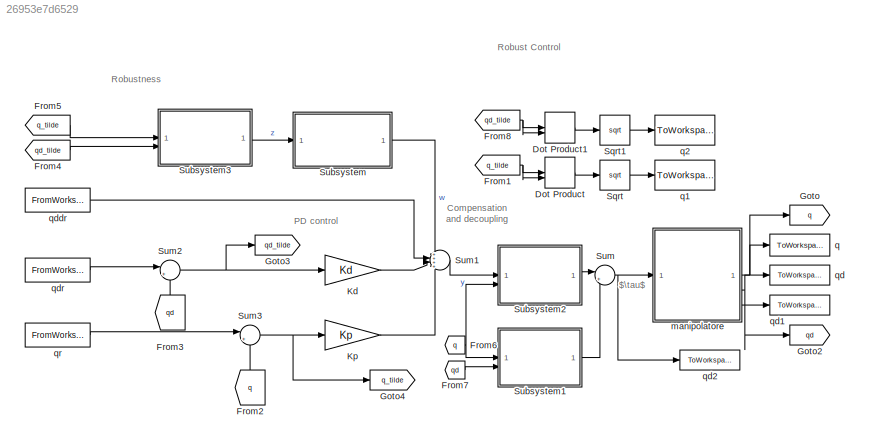
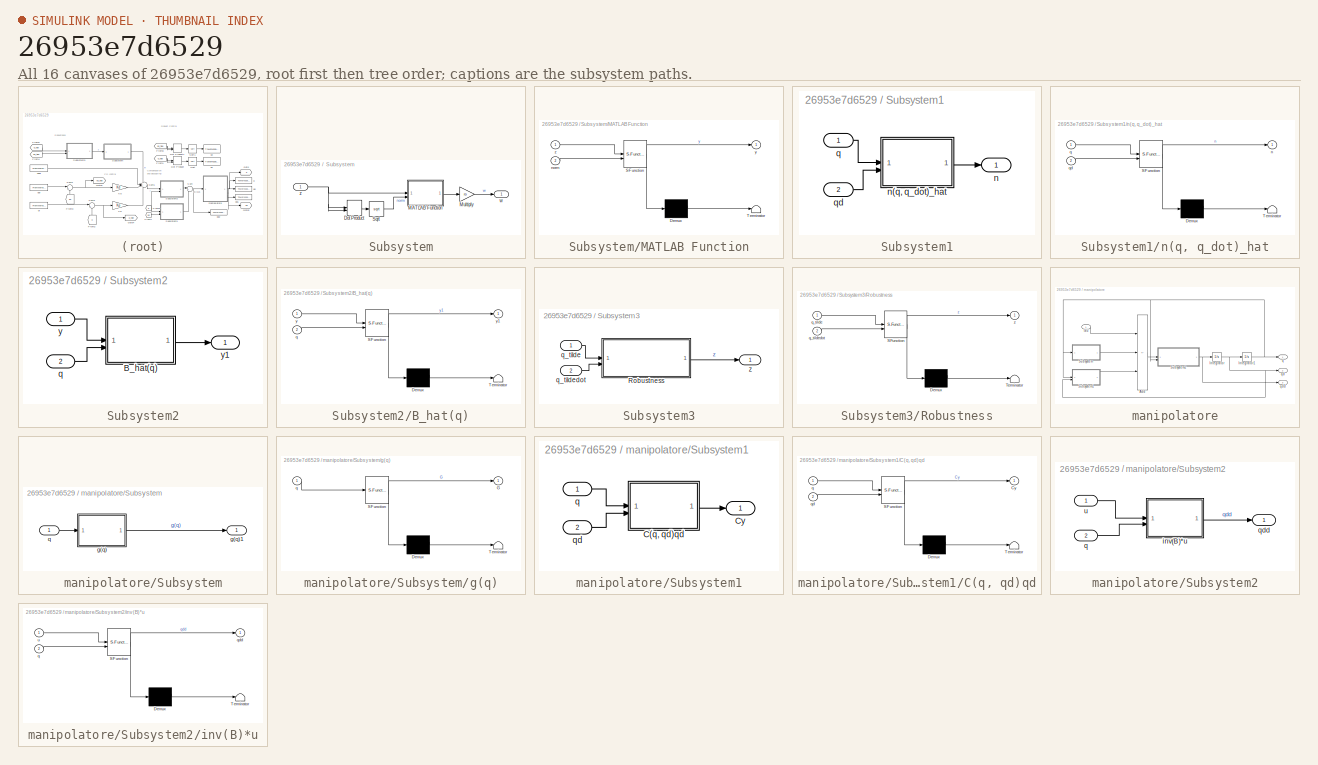
[diagram: thumbnail index - all 16 canvases of the model, root first then tree order]
MODEL slx_26953e7d6529
KIND model
CONFIG AbsTol = auto
CONFIG EnableMultiTasking = on
CONFIG FixedStep = 0.01
CONFIG MaxStep = auto
CONFIG MinStep = auto
CONFIG RelTol = 1e-3
CONFIG SampleTimeConstraint = Unconstrained
CONFIG SolverName = VariableStepAuto
CONFIG StartTime = 0.0
CONFIG StopTime = Tf
BLOCK [DotProduct] Dot Product
  OutDataTypeStr = Inherit: Inherit via internal rule
BLOCK [DotProduct] Dot Product1
  OutDataTypeStr = Inherit: Inherit via internal rule
BLOCK [From] From1
  GotoTag = q_tilde
  TagVisibility = global
BLOCK [From] From2
  GotoTag = q
  NameLocation = right
  TagVisibility = global
BLOCK [From] From3
  GotoTag = qd
  NameLocation = right
  TagVisibility = global
BLOCK [From] From4
  GotoTag = qd_tilde
BLOCK [From] From5
  GotoTag = q_tilde
  TagVisibility = global
BLOCK [From] From6
  GotoTag = q
  TagVisibility = global
BLOCK [From] From7
  GotoTag = qd
  TagVisibility = global
BLOCK [From] From8
  GotoTag = qd_tilde
BLOCK [Goto] Goto
  GotoTag = q
  TagVisibility = global
BLOCK [Goto] Goto2
  GotoTag = qd
  TagVisibility = global
BLOCK [Goto] Goto3
  GotoTag = qd_tilde
BLOCK [Goto] Goto4
  GotoTag = q_tilde
  TagVisibility = global
BLOCK [Gain] Kd
  Gain = Kd
  Multiplication = Matrix(K*u)
BLOCK [Gain] Kp
  Gain = Kp
  Multiplication = Matrix(K*u)
BLOCK [Sqrt] Sqrt
BLOCK [Sqrt] Sqrt1
BLOCK [SubSystem] Subsystem
  ShowPortLabels = none
BLOCK [DotProduct] Subsystem/Dot Product
  OutDataTypeStr = Inherit: Inherit via internal rule
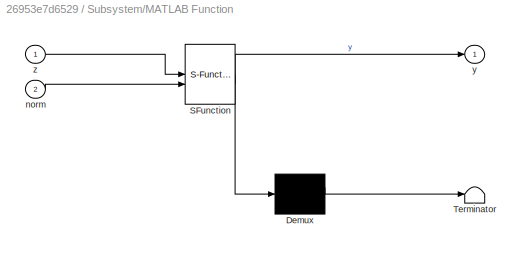
BLOCK [SubSystem] Subsystem/MATLAB Function
  ErrorFcn = Stateflow.Translate.translate
  PermitHierarchicalResolution = ExplicitOnly
  SFBlockType = MATLAB Function
  TreatAsAtomicUnit = on
BLOCK [Demux] Subsystem/MATLAB Function/ Demux 
  Outputs = 1
BLOCK [S-Function] Subsystem/MATLAB Function/ SFunction 
  EnableBusSupport = off
  FunctionName = sf_sfun
  Parameters = eps
  PortCounts = [2 2]
  SFcnIsStateOwnerBlock = off
  SFunctionDeploymentMode = off
  Tag = Stateflow S-Function 1
BLOCK [Terminator] Subsystem/MATLAB Function/ Terminator 
BLOCK [Inport] Subsystem/MATLAB Function/norm
  Port = 2
BLOCK [Outport] Subsystem/MATLAB Function/y
BLOCK [Inport] Subsystem/MATLAB Function/z
BLOCK [Gain] Subsystem/Multiply
  Gain = ro
BLOCK [Sqrt] Subsystem/Sqrt
BLOCK [Outport] Subsystem/w
BLOCK [Inport] Subsystem/z
BLOCK [SubSystem] Subsystem1
  ShowPortLabels = none
BLOCK [Outport] Subsystem1/n
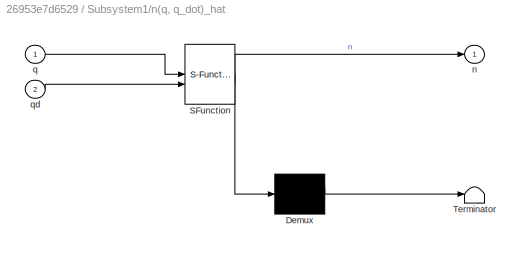
BLOCK [SubSystem] Subsystem1/n(q, q_dot)_hat
  ErrorFcn = Stateflow.Translate.translate
  PermitHierarchicalResolution = ExplicitOnly
  SFBlockType = MATLAB Function
  TreatAsAtomicUnit = on
BLOCK [Demux] Subsystem1/n(q, q_dot)_hat/ Demux 
  Outputs = 1
BLOCK [S-Function] Subsystem1/n(q, q_dot)_hat/ SFunction 
  EnableBusSupport = off
  FunctionName = sf_sfun
  PortCounts = [2 2]
  SFcnIsStateOwnerBlock = off
  SFunctionDeploymentMode = off
  Tag = Stateflow S-Function 4
BLOCK [Terminator] Subsystem1/n(q, q_dot)_hat/ Terminator 
BLOCK [Outport] Subsystem1/n(q, q_dot)_hat/n
BLOCK [Inport] Subsystem1/n(q, q_dot)_hat/q
BLOCK [Inport] Subsystem1/n(q, q_dot)_hat/qd
  Port = 2
BLOCK [Inport] Subsystem1/q
BLOCK [Inport] Subsystem1/qd
  Port = 2
BLOCK [SubSystem] Subsystem2
  ShowPortLabels = none
BLOCK [SubSystem] Subsystem2/B_hat(q)
  ErrorFcn = Stateflow.Translate.translate
  PermitHierarchicalResolution = ExplicitOnly
  SFBlockType = MATLAB Function
  TreatAsAtomicUnit = on
BLOCK [Demux] Subsystem2/B_hat(q)/ Demux 
  Outputs = 1
BLOCK [S-Function] Subsystem2/B_hat(q)/ SFunction 
  EnableBusSupport = off
  FunctionName = sf_sfun
  PortCounts = [2 2]
  SFcnIsStateOwnerBlock = off
  SFunctionDeploymentMode = off
  Tag = Stateflow S-Function 3
BLOCK [Terminator] Subsystem2/B_hat(q)/ Terminator 
BLOCK [Inport] Subsystem2/B_hat(q)/q
  Port = 2
BLOCK [Inport] Subsystem2/B_hat(q)/y
BLOCK [Outport] Subsystem2/B_hat(q)/y1
BLOCK [Inport] Subsystem2/q
  Port = 2
BLOCK [Inport] Subsystem2/y
BLOCK [Outport] Subsystem2/y1
BLOCK [SubSystem] Subsystem3
  ShowPortLabels = none
BLOCK [SubSystem] Subsystem3/Robustness
  ErrorFcn = Stateflow.Translate.translate
  PermitHierarchicalResolution = ExplicitOnly
  SFBlockType = MATLAB Function
  TreatAsAtomicUnit = on
BLOCK [Demux] Subsystem3/Robustness/ Demux 
  Outputs = 1
BLOCK [S-Function] Subsystem3/Robustness/ SFunction 
  EnableBusSupport = off
  FunctionName = sf_sfun
  Parameters = D,Q
  PortCounts = [2 2]
  SFcnIsStateOwnerBlock = off
  SFunctionDeploymentMode = off
  Tag = Stateflow S-Function 2
BLOCK [Terminator] Subsystem3/Robustness/ Terminator 
BLOCK [Inport] Subsystem3/Robustness/q_tilde
BLOCK [Inport] Subsystem3/Robustness/q_tildedot
  Port = 2
BLOCK [Outport] Subsystem3/Robustness/z
BLOCK [Inport] Subsystem3/q_tilde
BLOCK [Inport] Subsystem3/q_tildedot
  Port = 2
BLOCK [Outport] Subsystem3/z
BLOCK [Sum] Sum
  Inputs = |++
BLOCK [Sum] Sum1
  Inputs = ++++
BLOCK [Sum] Sum2
  Inputs = |+-
BLOCK [Sum] Sum3
  Inputs = |+-
BLOCK [SubSystem] manipolatore
  ShowPortLabels = none
BLOCK [Sum] manipolatore/Add
  IconShape = rectangular
  Inputs = +--
BLOCK [Integrator] manipolatore/Integrator
  InitialCondition = [0;0]
BLOCK [Integrator] manipolatore/Integrator1
  InitialCondition = qi
BLOCK [SubSystem] manipolatore/Subsystem
  ShowPortLabels = none
BLOCK [SubSystem] manipolatore/Subsystem/g(q)
  ErrorFcn = Stateflow.Translate.translate
  PermitHierarchicalResolution = ExplicitOnly
  SFBlockType = MATLAB Function
  TreatAsAtomicUnit = on
BLOCK [Demux] manipolatore/Subsystem/g(q)/ Demux 
  Outputs = 1
BLOCK [S-Function] manipolatore/Subsystem/g(q)/ SFunction 
  EnableBusSupport = off
  FunctionName = sf_sfun
  PortCounts = [1 2]
  SFcnIsStateOwnerBlock = off
  SFunctionDeploymentMode = off
  Tag = Stateflow S-Function 5
BLOCK [Terminator] manipolatore/Subsystem/g(q)/ Terminator 
BLOCK [Outport] manipolatore/Subsystem/g(q)/G
BLOCK [Inport] manipolatore/Subsystem/g(q)/q
BLOCK [Outport] manipolatore/Subsystem/g(q)1
BLOCK [Inport] manipolatore/Subsystem/q
BLOCK [SubSystem] manipolatore/Subsystem1
  ShowPortLabels = none
BLOCK [SubSystem] manipolatore/Subsystem1/C(q, qd)qd
  ErrorFcn = Stateflow.Translate.translate
  PermitHierarchicalResolution = ExplicitOnly
  SFBlockType = MATLAB Function
  TreatAsAtomicUnit = on
BLOCK [Demux] manipolatore/Subsystem1/C(q, qd)qd/ Demux 
  Outputs = 1
BLOCK [S-Function] manipolatore/Subsystem1/C(q, qd)qd/ SFunction 
  EnableBusSupport = off
  FunctionName = sf_sfun
  PortCounts = [2 2]
  SFcnIsStateOwnerBlock = off
  SFunctionDeploymentMode = off
  Tag = Stateflow S-Function 7
BLOCK [Terminator] manipolatore/Subsystem1/C(q, qd)qd/ Terminator 
BLOCK [Outport] manipolatore/Subsystem1/C(q, qd)qd/Cy
BLOCK [Inport] manipolatore/Subsystem1/C(q, qd)qd/q
BLOCK [Inport] manipolatore/Subsystem1/C(q, qd)qd/qd
  Port = 2
BLOCK [Outport] manipolatore/Subsystem1/Cy
BLOCK [Inport] manipolatore/Subsystem1/q
BLOCK [Inport] manipolatore/Subsystem1/qd
  Port = 2
BLOCK [SubSystem] manipolatore/Subsystem2
  ShowPortLabels = none
BLOCK [SubSystem] manipolatore/Subsystem2/inv(B)*u
  ErrorFcn = Stateflow.Translate.translate
  PermitHierarchicalResolution = ExplicitOnly
  SFBlockType = MATLAB Function
  TreatAsAtomicUnit = on
BLOCK [Demux] manipolatore/Subsystem2/inv(B)*u/ Demux 
  Outputs = 1
BLOCK [S-Function] manipolatore/Subsystem2/inv(B)*u/ SFunction 
  EnableBusSupport = off
  FunctionName = sf_sfun
  PortCounts = [2 2]
  SFcnIsStateOwnerBlock = off
  SFunctionDeploymentMode = off
  Tag = Stateflow S-Function 8
BLOCK [Terminator] manipolatore/Subsystem2/inv(B)*u/ Terminator 
BLOCK [Inport] manipolatore/Subsystem2/inv(B)*u/q
  Port = 2
BLOCK [Outport] manipolatore/Subsystem2/inv(B)*u/qdd
BLOCK [Inport] manipolatore/Subsystem2/inv(B)*u/u
BLOCK [Inport] manipolatore/Subsystem2/q
  Port = 2
BLOCK [Outport] manipolatore/Subsystem2/qdd
BLOCK [Inport] manipolatore/Subsystem2/u
BLOCK [Outport] manipolatore/q
BLOCK [Outport] manipolatore/qd
  Port = 2
BLOCK [Outport] manipolatore/qdd
  Port = 3
BLOCK [Inport] manipolatore/tau
BLOCK [ToWorkspace] q
  FixptAsFi = on
  MaxDataPoints = inf
  SampleTime = Tc
  VariableName = q
BLOCK [ToWorkspace] q1
  FixptAsFi = on
  MaxDataPoints = inf
  SampleTime = Tc
  VariableName = pos_err_norm
BLOCK [ToWorkspace] q2
  FixptAsFi = on
  MaxDataPoints = inf
  SampleTime = Tc
  VariableName = vel_err_norm
BLOCK [ToWorkspace] qd
  FixptAsFi = on
  MaxDataPoints = inf
  SampleTime = Tc
  VariableName = qd
BLOCK [ToWorkspace] qd1
  FixptAsFi = on
  MaxDataPoints = inf
  SampleTime = Tc
  VariableName = qdd
BLOCK [ToWorkspace] qd2
  FixptAsFi = on
  MaxDataPoints = inf
  SampleTime = Tc
  VariableName = tau
BLOCK [FromWorkspace] qddr
  SampleTime = Tc
  VariableName = qddref
BLOCK [FromWorkspace] qdr
  SampleTime = Tc
  VariableName = qdref
BLOCK [FromWorkspace] qr
  SampleTime = Tc
  VariableName = qref
ANNOTATION (root): Robust Control
ANNOTATION (root): $\tau$
ANNOTATION (root): Compensation and decoupling
ANNOTATION (root): PD control
ANNOTATION (root): Robustness
LINE Dot Product1:1 -> Sqrt1:1
LINE Dot Product:1 -> Sqrt:1
NET From1:1 -> Dot Product:1, Dot Product:2
LINE From2:1 -> Sum3:2
LINE From3:1 -> Sum2:2
LINE From4:1 -> Subsystem3:2
LINE From5:1 -> Subsystem3:1
NET From6:1 -> Subsystem1:1, Subsystem2:2
LINE From7:1 -> Subsystem1:2
NET From8:1 -> Dot Product1:1, Dot Product1:2
LINE Kd:1 -> Sum1:3
LINE Kp:1 -> Sum1:4
LINE Sqrt1:1 -> q2:1
LINE Sqrt:1 -> q1:1
LINE Subsystem/Dot Product:1 -> Subsystem/Sqrt:1
LINE Subsystem/MATLAB Function:1 -> Subsystem/Multiply:1
LINE Subsystem/Multiply:1 -> Subsystem/w:1
LINE Subsystem/Sqrt:1 -> Subsystem/MATLAB Function:2
NET Subsystem/z:1 -> Subsystem/Dot Product:1, Subsystem/Dot Product:2, Subsystem/MATLAB Function:1
LINE Subsystem1/n(q, q_dot)_hat:1 -> Subsystem1/n:1
LINE Subsystem1/q:1 -> Subsystem1/n(q, q_dot)_hat:1
LINE Subsystem1/qd:1 -> Subsystem1/n(q, q_dot)_hat:2
LINE Subsystem1:1 -> Sum:2
LINE Subsystem2/B_hat(q):1 -> Subsystem2/y1:1
LINE Subsystem2/q:1 -> Subsystem2/B_hat(q):2
LINE Subsystem2/y:1 -> Subsystem2/B_hat(q):1
LINE Subsystem2:1 -> Sum:1
LINE Subsystem3/Robustness:1 -> Subsystem3/z:1
LINE Subsystem3/q_tilde:1 -> Subsystem3/Robustness:1
LINE Subsystem3/q_tildedot:1 -> Subsystem3/Robustness:2
LINE Subsystem3:1 -> Subsystem:1
LINE Subsystem:1 -> Sum1:1
LINE Sum1:1 -> Subsystem2:1
NET Sum2:1 -> Goto3:1, Kd:1
NET Sum3:1 -> Goto4:1, Kp:1
NET Sum:1 -> manipolatore:1, qd2:1
LINE manipolatore/Add:1 -> manipolatore/Subsystem2:1
NET manipolatore/Integrator1:1 -> manipolatore/Subsystem1:1, manipolatore/Subsystem2:2, manipolatore/Subsystem:1, manipolatore/q:1
NET manipolatore/Integrator:1 -> manipolatore/Integrator1:1, manipolatore/Subsystem1:2, manipolatore/qd:1
LINE manipolatore/Subsystem/g(q):1 -> manipolatore/Subsystem/g(q)1:1
LINE manipolatore/Subsystem/q:1 -> manipolatore/Subsystem/g(q):1
LINE manipolatore/Subsystem1/C(q, qd)qd:1 -> manipolatore/Subsystem1/Cy:1
LINE manipolatore/Subsystem1/q:1 -> manipolatore/Subsystem1/C(q, qd)qd:1
LINE manipolatore/Subsystem1/qd:1 -> manipolatore/Subsystem1/C(q, qd)qd:2
LINE manipolatore/Subsystem1:1 -> manipolatore/Add:3
LINE manipolatore/Subsystem2/inv(B)*u:1 -> manipolatore/Subsystem2/qdd:1
LINE manipolatore/Subsystem2/q:1 -> manipolatore/Subsystem2/inv(B)*u:2
LINE manipolatore/Subsystem2/u:1 -> manipolatore/Subsystem2/inv(B)*u:1
NET manipolatore/Subsystem2:1 -> manipolatore/Integrator:1, manipolatore/qdd:1
LINE manipolatore/Subsystem:1 -> manipolatore/Add:2
LINE manipolatore/tau:1 -> manipolatore/Add:1
NET manipolatore:1 -> Goto:1, q:1
NET manipolatore:2 -> Goto2:1, qd:1
LINE manipolatore:3 -> qd1:1
LINE qddr:1 -> Sum1:2
LINE qdr:1 -> Sum2:1
LINE qr:1 -> Sum3:1
note: NET lines group one-source signal fan-out (src -> all destinations, sorted); 1:1 wires keep LINE
CHART Subsystem/MATLAB Function states=1 transitions=1
  STATE_LABEL 'eML_blk_kernel()'
  STATE_LABEL 'SCRIPT:\nfunction y = fcn(z, norm, eps)\n    if norm >= eps\n        y = z / norm;\n    else\n        y = z / eps;\n    end\nend'
CHART Subsystem3/Robustness states=1 transitions=1
  STATE_LABEL 'eML_blk_kernel()'
  STATE_LABEL "SCRIPT:\nfunction z = fcn(q_tilde, q_tildedot, D, Q)\n    eps = [q_tilde; q_tildedot];\n    z = D' * Q * eps;\nend"
CHART Subsystem2/B_hat(q) states=1 transitions=1
  STATE_LABEL 'eML_blk_kernel()'
  STATE_LABEL 'SCRIPT:\nfunction y1 = fcn(y, q)\n    a1 = 1; l1 = 0.5; l2 = 0.5; ml1 = 50; ml2 = 50; Il1 = 10; Il2 = 10; \n    kr1 = 100; kr2 = 100; mm2 = 5; Im1 = 0.01; Im2 = 0.01; \n\n    % INERTIA MATRIX\n    b11 = Il1 + ml1 * l1^2 + kr1^2 * Im1 + Il2 + ml2 * (a1^2 + l2^2) ...\n         + Im2 + mm2 * a1^2;\n    b12 = Il2 + ml2 * l2^2 + kr2 * Im2;\n    b21 = b12;\n    b22 = Il2 + ml2 * l2^2 + kr2^2 * Im2;\n    B = [b11 b...<+45ch>'
CHART Subsystem1/n(q, q_dot)_hat states=1 transitions=1
  STATE_LABEL 'eML_blk_kernel()'
  STATE_LABEL 'SCRIPT:\nfunction n = fcn(q, qd)\n    a1 = 1; l1 = 0.5; l2 = 0.5; ml1 = 50; ml2 = 50; mm2 = 5; g = 9.81; \n    teta1 = q(1); teta2 = q(2); c1 = cos(teta1); c12 = cos(teta1 + teta2);\n\n    g1 = (ml1 * l1 + mm2 * a1 + ml2 * a1) * g * c1 + ml2 * l2 * g * c12;\n    g2 = ml2 * l2 * g * c12;\n    G = [g1; \n         g2];\n\n    n = G;\nend'
CHART manipolatore/Subsystem/g(q) states=1 transitions=1
  STATE_LABEL 'eML_blk_kernel()'
  STATE_LABEL 'SCRIPT:\nfunction G = fcn(q)\n    \n    a1 = 1; l1 = 0.5; l2 = 0.5; ml1 = 50; ml2 = 50; mm2 = 5; g = 9.81; \n    teta1 = q(1); teta2 = q(2); c1 = cos(teta1); c12 = cos(teta1 + teta2);\n\n    g1 = (ml1 * l1 + mm2 * a1 + ml2 * a1) * g * c1 + ml2 * l2 * g * c12;\n    g2 = ml2 * l2 * g * c12;\n    G = [g1;\n         g2];\nend'
CHART manipolatore/Subsystem1/C(q, qd)qd states=1 transitions=1
  STATE_LABEL 'eML_blk_kernel()'
  STATE_LABEL 'SCRIPT:\nfunction Cy = fcn(q, qd)\n    a1 = 1; l2 = 0.5; ml2 = 50; \n    teta2 = q(2); teta1d = qd(1); teta2d = qd(2); s2 = sin(teta2); \n\n    h = -ml2 * a1 * l2 * s2;\n    C = [h*teta2d h*(teta1d+teta2d); -h*teta1d 0];\n    Cy = C * qd;\nend'
CHART manipolatore/Subsystem2/inv(B)*u states=1 transitions=1
  STATE_LABEL 'eML_blk_kernel()'
  STATE_LABEL 'SCRIPT:\nfunction qdd = fcn(u, q)\n    a1 = 1; l1 = 0.5; l2 = 0.5; ml1 = 50; ml2 = 50; Il1 = 10; Il2 = 10; \n    kr1 = 100; kr2 = 100; mm2 = 5; Im1 = 0.01; Im2 = 0.01;\n\n    teta2 = q(2); c2 = cos(teta2); \n\n    b11 = Il1 + ml1 * l1^2 + kr1^2 * Im1 + Il2 + ...\n          ml2 * (a1^2 + l2^2 + 2 * a1 * l2 *c2) + Im2 + mm2 * a1^2;\n    b12 = Il2 + ml2 * (l2^2 + a1 * l2 * c2) + kr2 * Im2;\n    b21 = b12;\n    ...<+85ch>'
CHART  states=0 transitions=0
CHART  states=0 transitions=0
CHART  states=0 transitions=0
CHART  states=0 transitions=0
CHART  states=0 transitions=0
CHART  states=0 transitions=0
CHART  states=0 transitions=0
